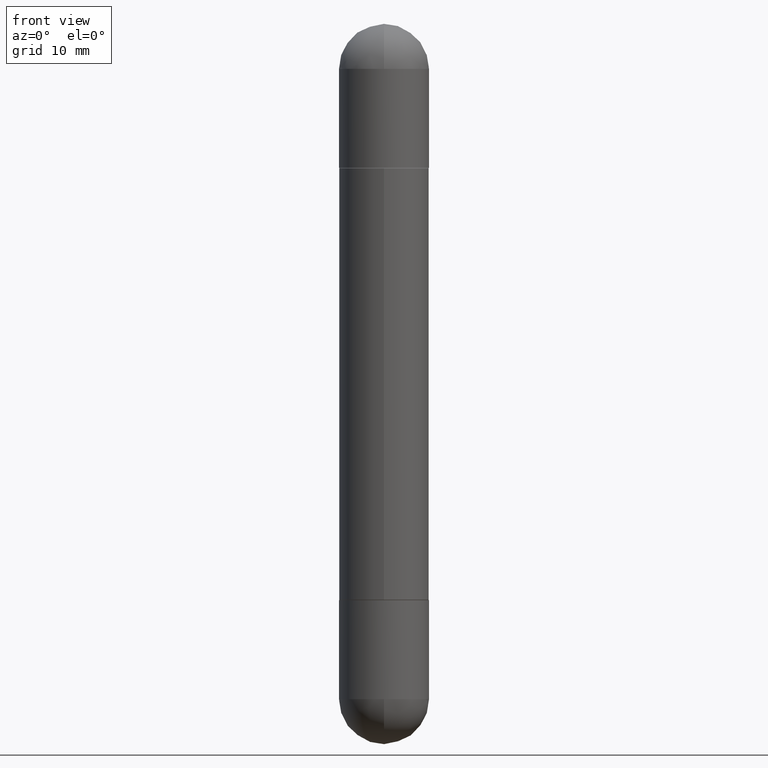
[diagram: clean part render]
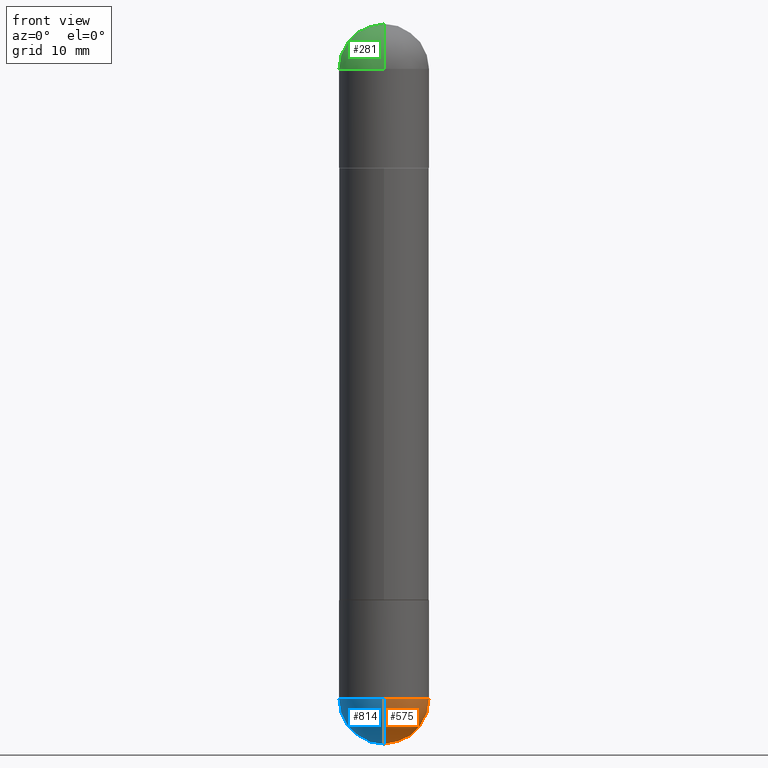
[diagram: same view with three faces highlighted in distinct colors, each labeled with its STEP entity id]
A machine part, front view with three faces highlighted in distinct colors.
Their STEP definitions:

[orange] entity #575 — the highlighted spherical surface has radius 3.9688 mm.
#7 = DIRECTION ( 'NONE',  ( 1.000000000000000000, -6.982962677686262766E-15, 0.000000000000000000 ) ) ;
#36 = CARTESIAN_POINT ( 'NONE',  ( -1.110223024625101517E-15, -0.1562500000000085487, -2.343749999999999556 ) ) ;
#44 = EDGE_CURVE ( 'NONE', #470, #476, #406, .T. ) ;
#45 = VERTEX_POINT ( 'NONE', #150 ) ;
#84 = AXIS2_PLACEMENT_3D ( 'NONE', #599, #714, #385 ) ;
#105 = EDGE_CURVE ( 'NONE', #470, #287, #577, .T. ) ;
#115 = ORIENTED_EDGE ( 'NONE', *, *, #142, .F. ) ;
#119 = CARTESIAN_POINT ( 'NONE',  ( 5.400447736582527652E-29, -8.657341756053672891E-15, -2.343750000000000000 ) ) ;
#129 = CARTESIAN_POINT ( 'NONE',  ( 5.731567514496413899E-29, -8.183159387913622595E-15, -2.343750000000000000 ) ) ;
#134 = AXIS2_PLACEMENT_3D ( 'NONE', #129, #188, #7 ) ;
#136 = CIRCLE ( 'NONE', #475, 0.1562500000000000000 ) ;
#142 = EDGE_CURVE ( 'NONE', #45, #287, #724, .T. ) ;
#150 = CARTESIAN_POINT ( 'NONE',  ( 0.1562500000000000000, -8.674148951188436448E-15, -2.343750000000000000 ) ) ;
#188 = DIRECTION ( 'NONE',  ( -2.445468806185136597E-29, 3.491481338843145583E-15, 1.000000000000000000 ) ) ;
#278 = DIRECTION ( 'NONE',  ( -7.105427357601000281E-15, -1.000000000000000000, 0.000000000000000000 ) ) ;
#287 = VERTEX_POINT ( 'NONE', #815 ) ;
#327 = AXIS2_PLACEMENT_3D ( 'NONE', #530, #799, #278 ) ;
#337 = DIRECTION ( 'NONE',  ( 1.000000000000000000, -6.982962677686262766E-15, 0.000000000000000000 ) ) ;
#366 = DIRECTION ( 'NONE',  ( -1.000000000000000000, 6.982962677686265922E-15, -4.883557194083112340E-29 ) ) ;
#385 = DIRECTION ( 'NONE',  ( 6.982962677686265922E-15, 1.000000000000000000, 0.000000000000000000 ) ) ;
#406 = CIRCLE ( 'NONE', #327, 0.1562500000000002498 ) ;
#431 = DIRECTION ( 'NONE',  ( -2.445468806185136597E-29, 3.491481338843145583E-15, 1.000000000000000000 ) ) ;
#470 = VERTEX_POINT ( 'NONE', #677 ) ;
#475 = AXIS2_PLACEMENT_3D ( 'NONE', #759, #431, #337 ) ;
#476 = VERTEX_POINT ( 'NONE', #36 ) ;
#492 = SPHERICAL_SURFACE ( 'NONE', #502, 0.1562500000000002498 ) ;
#502 = AXIS2_PLACEMENT_3D ( 'NONE', #119, #366, #693 ) ;
#530 = CARTESIAN_POINT ( 'NONE',  ( 5.400447736582527652E-29, -8.657341756053672891E-15, -2.343750000000000000 ) ) ;
#532 = ORIENTED_EDGE ( 'NONE', *, *, #105, .T. ) ;
#547 = ORIENTED_EDGE ( 'NONE', *, *, #587, .F. ) ;
#575 = ADVANCED_FACE ( 'NONE', ( #615 ), #492, .T. ) ;
#577 = CIRCLE ( 'NONE', #84, 0.1562500000000002498 ) ;
#587 = EDGE_CURVE ( 'NONE', #476, #45, #136, .T. ) ;
#599 = CARTESIAN_POINT ( 'NONE',  ( 5.400447736582527652E-29, -8.657341756053672891E-15, -2.343750000000000000 ) ) ;
#613 = EDGE_LOOP ( 'NONE', ( #774, #532, #115, #547 ) ) ;
#615 = FACE_OUTER_BOUND ( 'NONE', #613, .T. ) ;
#677 = CARTESIAN_POINT ( 'NONE',  ( 5.789233224183170584E-29, -9.193318162129576161E-15, -2.500000000000000000 ) ) ;
#693 = DIRECTION ( 'NONE',  ( 6.982962677686265922E-15, 1.000000000000000000, -3.496765431890251398E-15 ) ) ;
#714 = DIRECTION ( 'NONE',  ( 1.000000000000000000, -6.982962677686265922E-15, 4.883557194083112340E-29 ) ) ;
#724 = CIRCLE ( 'NONE', #134, 0.1562500000000000000 ) ;
#759 = CARTESIAN_POINT ( 'NONE',  ( 5.731567514496413899E-29, -8.183159387913622595E-15, -2.343750000000000000 ) ) ;
#774 = ORIENTED_EDGE ( 'NONE', *, *, #44, .F. ) ;
#799 = DIRECTION ( 'NONE',  ( -1.000000000000000000, 7.105427357601001070E-15, -4.926315508542082329E-29 ) ) ;
#815 = CARTESIAN_POINT ( 'NONE',  ( 1.091087918388535577E-15, 0.1562499999999916733, -2.343750000000000444 ) ) ;

[blue] entity #814 — the highlighted spherical surface has radius 3.9688 mm.
#36 = CARTESIAN_POINT ( 'NONE',  ( -1.110223024625101517E-15, -0.1562500000000085487, -2.343749999999999556 ) ) ;
#44 = EDGE_CURVE ( 'NONE', #470, #476, #406, .T. ) ;
#48 = CIRCLE ( 'NONE', #640, 0.1562500000000000000 ) ;
#58 = CARTESIAN_POINT ( 'NONE',  ( -0.1562500000000000000, -6.472838008174800734E-15, -2.343750000000000000 ) ) ;
#77 = DIRECTION ( 'NONE',  ( -2.445468806185136597E-29, 3.491481338843145583E-15, 1.000000000000000000 ) ) ;
#84 = AXIS2_PLACEMENT_3D ( 'NONE', #599, #714, #385 ) ;
#105 = EDGE_CURVE ( 'NONE', #470, #287, #577, .T. ) ;
#131 = CARTESIAN_POINT ( 'NONE',  ( 5.731567514496413899E-29, -8.183159387913622595E-15, -2.343750000000000000 ) ) ;
#151 = FACE_OUTER_BOUND ( 'NONE', #769, .T. ) ;
#263 = EDGE_CURVE ( 'NONE', #287, #291, #563, .T. ) ;
#278 = DIRECTION ( 'NONE',  ( -7.105427357601000281E-15, -1.000000000000000000, 0.000000000000000000 ) ) ;
#287 = VERTEX_POINT ( 'NONE', #815 ) ;
#291 = VERTEX_POINT ( 'NONE', #58 ) ;
#316 = DIRECTION ( 'NONE',  ( 1.000000000000000000, -6.982962677686262766E-15, 0.000000000000000000 ) ) ;
#327 = AXIS2_PLACEMENT_3D ( 'NONE', #530, #799, #278 ) ;
#358 = ORIENTED_EDGE ( 'NONE', *, *, #263, .F. ) ;
#385 = DIRECTION ( 'NONE',  ( 6.982962677686265922E-15, 1.000000000000000000, 0.000000000000000000 ) ) ;
#406 = CIRCLE ( 'NONE', #327, 0.1562500000000002498 ) ;
#467 = DIRECTION ( 'NONE',  ( 1.000000000000000000, -6.982962677686262766E-15, 0.000000000000000000 ) ) ;
#470 = VERTEX_POINT ( 'NONE', #677 ) ;
#476 = VERTEX_POINT ( 'NONE', #36 ) ;
#483 = ORIENTED_EDGE ( 'NONE', *, *, #761, .F. ) ;
#503 = AXIS2_PLACEMENT_3D ( 'NONE', #593, #588, #668 ) ;
#530 = CARTESIAN_POINT ( 'NONE',  ( 5.400447736582527652E-29, -8.657341756053672891E-15, -2.343750000000000000 ) ) ;
#563 = CIRCLE ( 'NONE', #710, 0.1562500000000000000 ) ;
#577 = CIRCLE ( 'NONE', #84, 0.1562500000000002498 ) ;
#588 = DIRECTION ( 'NONE',  ( -1.000000000000000000, 6.982962677686265922E-15, -4.883557194083112340E-29 ) ) ;
#593 = CARTESIAN_POINT ( 'NONE',  ( 5.400447736582527652E-29, -8.657341756053672891E-15, -2.343750000000000000 ) ) ;
#599 = CARTESIAN_POINT ( 'NONE',  ( 5.400447736582527652E-29, -8.657341756053672891E-15, -2.343750000000000000 ) ) ;
#640 = AXIS2_PLACEMENT_3D ( 'NONE', #801, #735, #467 ) ;
#668 = DIRECTION ( 'NONE',  ( 6.982962677686265922E-15, 1.000000000000000000, -3.496765431890251398E-15 ) ) ;
#677 = CARTESIAN_POINT ( 'NONE',  ( 5.789233224183170584E-29, -9.193318162129576161E-15, -2.500000000000000000 ) ) ;
#689 = ORIENTED_EDGE ( 'NONE', *, *, #44, .T. ) ;
#710 = AXIS2_PLACEMENT_3D ( 'NONE', #131, #77, #316 ) ;
#714 = DIRECTION ( 'NONE',  ( 1.000000000000000000, -6.982962677686265922E-15, 4.883557194083112340E-29 ) ) ;
#719 = SPHERICAL_SURFACE ( 'NONE', #503, 0.1562500000000002498 ) ;
#735 = DIRECTION ( 'NONE',  ( -2.445468806185136597E-29, 3.491481338843145583E-15, 1.000000000000000000 ) ) ;
#742 = ORIENTED_EDGE ( 'NONE', *, *, #105, .F. ) ;
#761 = EDGE_CURVE ( 'NONE', #291, #476, #48, .T. ) ;
#769 = EDGE_LOOP ( 'NONE', ( #742, #689, #483, #358 ) ) ;
#799 = DIRECTION ( 'NONE',  ( -1.000000000000000000, 7.105427357601001070E-15, -4.926315508542082329E-29 ) ) ;
#801 = CARTESIAN_POINT ( 'NONE',  ( 5.731567514496413899E-29, -8.183159387913622595E-15, -2.343750000000000000 ) ) ;
#814 = ADVANCED_FACE ( 'NONE', ( #151 ), #719, .T. ) ;
#815 = CARTESIAN_POINT ( 'NONE',  ( 1.091087918388535577E-15, 0.1562499999999916733, -2.343750000000000444 ) ) ;

[green] entity #281 — the highlighted spherical surface has radius 3.9688 mm.
#4 = EDGE_CURVE ( 'NONE', #720, #359, #300, .T. ) ;
#10 = CIRCLE ( 'NONE', #246, 0.1562500000000000000 ) ;
#40 = ORIENTED_EDGE ( 'NONE', *, *, #4, .T. ) ;
#42 = DIRECTION ( 'NONE',  ( -1.000000000000000000, 6.982962677686265922E-15, 4.883557194083112340E-29 ) ) ;
#81 = CARTESIAN_POINT ( 'NONE',  ( -0.1562500000000000000, -6.511108220648156257E-15, -0.1562500000000005551 ) ) ;
#90 = DIRECTION ( 'NONE',  ( 6.860497997771530774E-15, 1.000000000000000000, 0.000000000000000000 ) ) ;
#148 = CARTESIAN_POINT ( 'NONE',  ( 5.400447736582527652E-29, -8.657341756053672891E-15, -0.1562500000000005551 ) ) ;
#156 = CARTESIAN_POINT ( 'NONE',  ( 5.400447736582527652E-29, -8.657341756053672891E-15, -0.1562500000000005551 ) ) ;
#159 = ORIENTED_EDGE ( 'NONE', *, *, #205, .T. ) ;
#189 = CARTESIAN_POINT ( 'NONE',  ( 5.789233224183170584E-29, -9.193318162129576161E-15, -3.073328992872296367E-16 ) ) ;
#192 = CARTESIAN_POINT ( 'NONE',  ( 5.731567514496413899E-29, -8.183159387913622595E-15, -0.1562500000000005551 ) ) ;
#201 = VERTEX_POINT ( 'NONE', #243 ) ;
#205 = EDGE_CURVE ( 'NONE', #608, #201, #10, .T. ) ;
#208 = AXIS2_PLACEMENT_3D ( 'NONE', #489, #364, #616 ) ;
#224 = ORIENTED_EDGE ( 'NONE', *, *, #372, .F. ) ;
#235 = SPHERICAL_SURFACE ( 'NONE', #208, 0.1562500000000002498 ) ;
#237 = CIRCLE ( 'NONE', #750, 0.1562500000000000000 ) ;
#243 = CARTESIAN_POINT ( 'NONE',  ( -1.071952812151746981E-15, -0.1562500000000085487, -0.1562500000000011102 ) ) ;
#246 = AXIS2_PLACEMENT_3D ( 'NONE', #375, #633, #505 ) ;
#255 = EDGE_CURVE ( 'NONE', #359, #608, #237, .T. ) ;
#281 = ADVANCED_FACE ( 'NONE', ( #432 ), #235, .T. ) ;
#300 = CIRCLE ( 'NONE', #619, 0.1562500000000002498 ) ;
#306 = DIRECTION ( 'NONE',  ( 2.445468806185136597E-29, -3.491481338843145583E-15, 1.000000000000000000 ) ) ;
#347 = ORIENTED_EDGE ( 'NONE', *, *, #255, .T. ) ;
#359 = VERTEX_POINT ( 'NONE', #582 ) ;
#364 = DIRECTION ( 'NONE',  ( 1.000000000000000000, -6.982962677686265922E-15, -4.883557194083112340E-29 ) ) ;
#372 = EDGE_CURVE ( 'NONE', #720, #201, #578, .T. ) ;
#375 = CARTESIAN_POINT ( 'NONE',  ( 5.731567514496413899E-29, -8.183159387913622595E-15, -0.1562500000000005551 ) ) ;
#432 = FACE_OUTER_BOUND ( 'NONE', #802, .T. ) ;
#450 = DIRECTION ( 'NONE',  ( 1.000000000000000000, -6.860497997771530774E-15, -4.840798879624142912E-29 ) ) ;
#489 = CARTESIAN_POINT ( 'NONE',  ( 5.400447736582527652E-29, -8.657341756053672891E-15, -0.1562500000000005551 ) ) ;
#505 = DIRECTION ( 'NONE',  ( 1.000000000000000000, -6.982962677686262766E-15, 0.000000000000000000 ) ) ;
#578 = CIRCLE ( 'NONE', #669, 0.1562500000000002498 ) ;
#582 = CARTESIAN_POINT ( 'NONE',  ( 1.091087918388535577E-15, 0.1562499999999916733, -0.1562500000000000000 ) ) ;
#608 = VERTEX_POINT ( 'NONE', #81 ) ;
#616 = DIRECTION ( 'NONE',  ( 6.982962677686265922E-15, 1.000000000000000000, 3.496765431890251398E-15 ) ) ;
#619 = AXIS2_PLACEMENT_3D ( 'NONE', #156, #42, #666 ) ;
#633 = DIRECTION ( 'NONE',  ( 2.445468806185136597E-29, -3.491481338843145583E-15, 1.000000000000000000 ) ) ;
#666 = DIRECTION ( 'NONE',  ( -6.982962677686265922E-15, -1.000000000000000000, 0.000000000000000000 ) ) ;
#669 = AXIS2_PLACEMENT_3D ( 'NONE', #148, #450, #90 ) ;
#704 = DIRECTION ( 'NONE',  ( 1.000000000000000000, -6.982962677686262766E-15, 0.000000000000000000 ) ) ;
#720 = VERTEX_POINT ( 'NONE', #189 ) ;
#750 = AXIS2_PLACEMENT_3D ( 'NONE', #192, #306, #704 ) ;
#802 = EDGE_LOOP ( 'NONE', ( #224, #40, #347, #159 ) ) ;